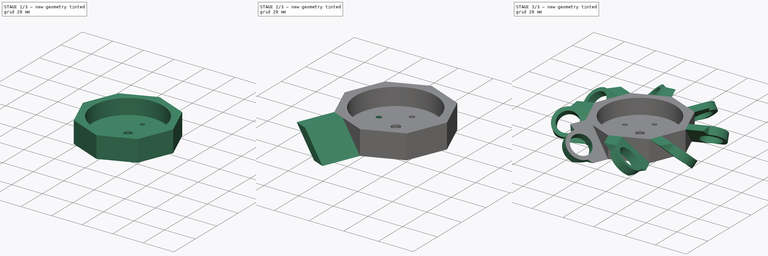
[diagram: build sequence overview — one tinted view per stage of 3, left to right]
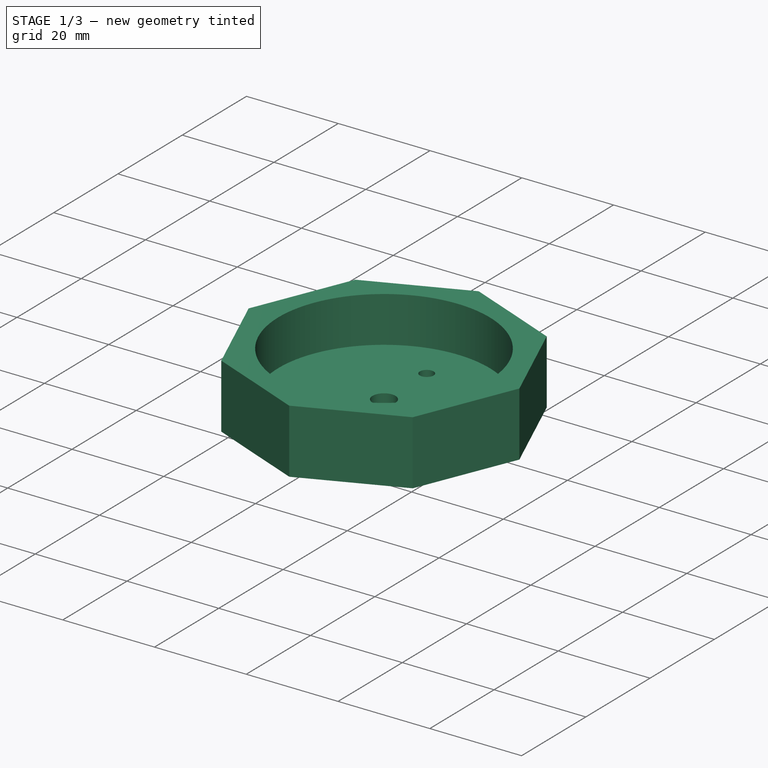
[diagram: stage 1 of 3 — iso view after this stage's code; geometry added in this stage tinted green]
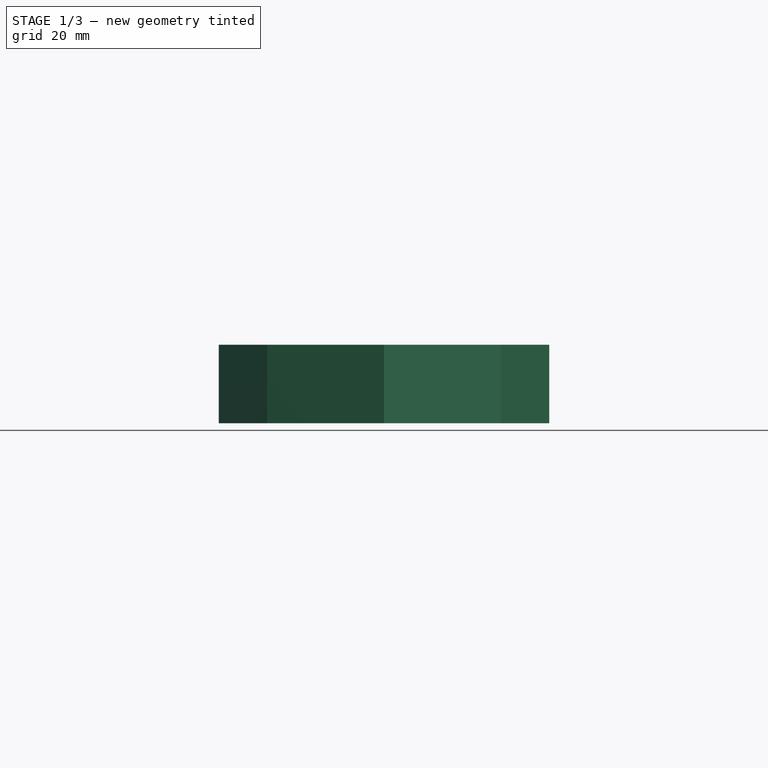
[diagram: stage 1 of 3 — front view after this stage's code; geometry added in this stage tinted green]
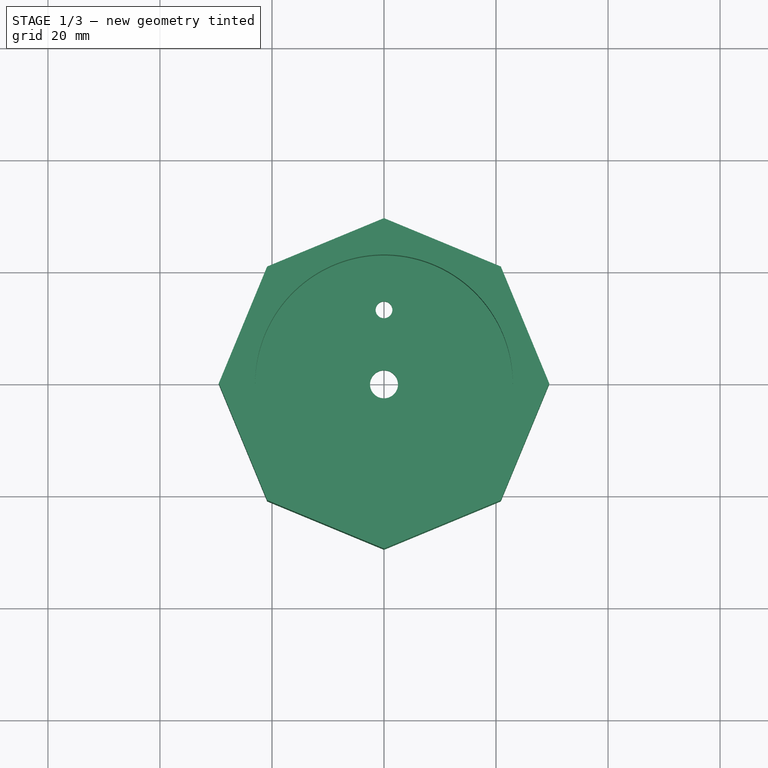
[diagram: stage 1 of 3 — top view after this stage's code; geometry added in this stage tinted green]
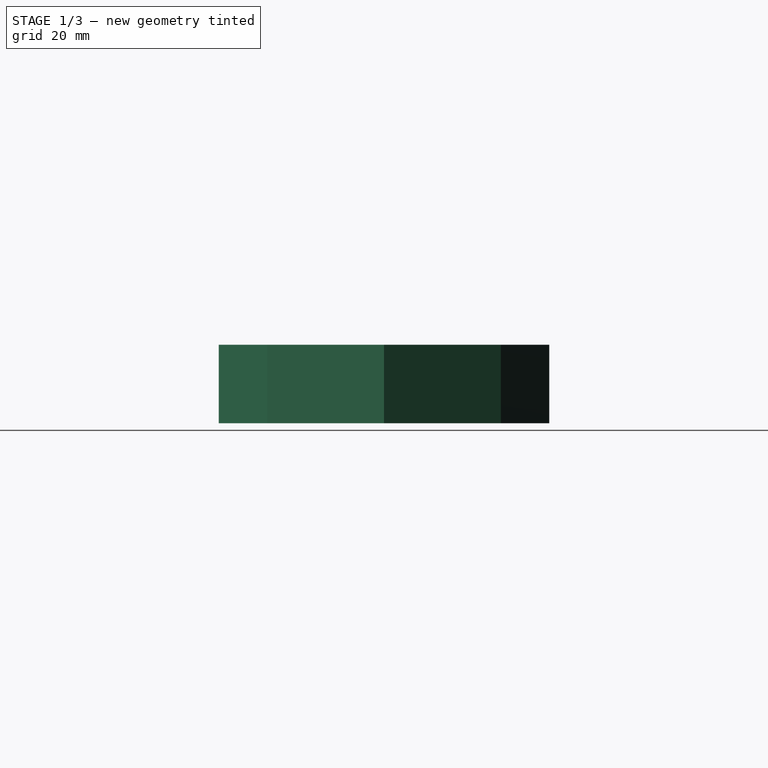
[diagram: stage 1 of 3 — right view after this stage's code; geometry added in this stage tinted green]
FCSTD DOCUMENT  (FreeCAD 0.18.3R)
Label: wheel_left
License: All rights reserved
LicenseURL: http://en.wikipedia.org/wiki/All_rights_reserved
objects: Sketcher::SketchObject×5, PartDesign::Pocket×3, PartDesign::PolarPattern×3, PartDesign::Pad×2, PartDesign::Body×1
note: 19 computed .brp shape members not serialized (recipe doc carries the construction recipe); baked Part::Feature solids carry a one-line shape summary decoded from their .brp

FEATURE [Sketcher::SketchObject] Sketch
  MapMode = 5
  Support = -> [XY_Plane]
  sketch-geometry (9):
    g0: LineSegment StartX=29.5 StartY=0 StartZ=0 EndX=20.8597 EndY=20.8597 EndZ=0
    g1: LineSegment StartX=20.8597 StartY=20.8597 StartZ=0 EndX=3.6e-15 EndY=29.5 EndZ=0
    g2: LineSegment StartX=3.6e-15 StartY=29.5 StartZ=0 EndX=-20.8597 EndY=20.8597 EndZ=0
    g3: LineSegment StartX=-20.8597 StartY=20.8597 StartZ=0 EndX=-29.5 EndY=3.6e-15 EndZ=0
    g4: LineSegment StartX=-29.5 StartY=2.5e-15 StartZ=0 EndX=-20.8597 EndY=-20.8597 EndZ=0
    g5: LineSegment StartX=-20.8597 StartY=-20.8597 StartZ=0 EndX=0 EndY=-29.5 EndZ=0
    g6: LineSegment StartX=-1.8e-15 StartY=-29.5 StartZ=0 EndX=20.8597 EndY=-20.8597 EndZ=0
    g7: LineSegment StartX=20.8597 StartY=-20.8597 StartZ=0 EndX=29.5 EndY=0 EndZ=0
    g8: Circle [constr] CenterX=0 CenterY=0 CenterZ=0 NormalX=0 NormalY=0 NormalZ=1 AngleXU=0 Radius=29.5
  constraints (20):
    c: Coincident(g0,g1)
    c: Coincident(g1,g2)
    c: Coincident(g2,g3)
    c: Coincident(g3,g4)
    c: Coincident(g4,g5)
    c: Coincident(g5,g6)
    c: Coincident(g6,g7)
    c: Coincident(g7,g0)
    c: Equal(g0, g1-g7) x7
    c: PointOnObject(g0,g8)
    c: PointOnObject(g1,g8)
    c: PointOnObject(g2,g8)
    c: PointOnObject(g3,g8)
    c: PointOnObject(g4,g8)
    c: PointOnObject(g5,g8)
    c: PointOnObject(g6,g8)
    c: PointOnObject(g7,g8)
    c: Coincident(g8,g-1)
    c: PointOnObject(g7,g-1)
    c: DistanceX(g3,g0) = 59
FEATURE [PartDesign::Pad] Pad
  Length = 14
  Length2 = 100
  Profile = -> Sketch
  Type = 0
FEATURE [Sketcher::SketchObject] Sketch001
  MapMode = 5
  Placement = pos=(0,0,14) rot=(0,0,1;0rad)
  Support = -> [Pad]
  sketch-geometry (1):
    g0: Circle CenterX=0 CenterY=0 CenterZ=0 NormalX=0 NormalY=0 NormalZ=1 AngleXU=0 Radius=23
  constraints (2):
    c: Coincident(g0,g-1)
    c: Diameter(g0) = 46
FEATURE [PartDesign::Pocket] Pocket
  BaseFeature = -> Pad
  Length = 10
  Length2 = 100
  Profile = -> Sketch001
  Type = 0
FEATURE [Sketcher::SketchObject] Sketch002
  MapMode = 5
  Placement = pos=(0,0,4) rot=(0,0,1;0rad)
  Support = -> [Pocket]
  sketch-geometry (2):
    g0: Circle CenterX=0 CenterY=0 CenterZ=0 NormalX=0 NormalY=0 NormalZ=1 AngleXU=0 Radius=2.5
    g1: Circle CenterX=0 CenterY=13.3 CenterZ=0 NormalX=0 NormalY=0 NormalZ=1 AngleXU=0 Radius=1.5
  constraints (5):
    c: Coincident(g0,g-1)
    c: Diameter(g0) = 5
    c: Diameter(g1) = 3
    c: PointOnObject(g1,g-2)
    c: DistanceY(g0,g1) = 13.3
FEATURE [PartDesign::Pocket] Pocket001
  BaseFeature = -> Pocket
  Length = 5
  Length2 = 100
  Profile = -> Sketch002
  Type = 1
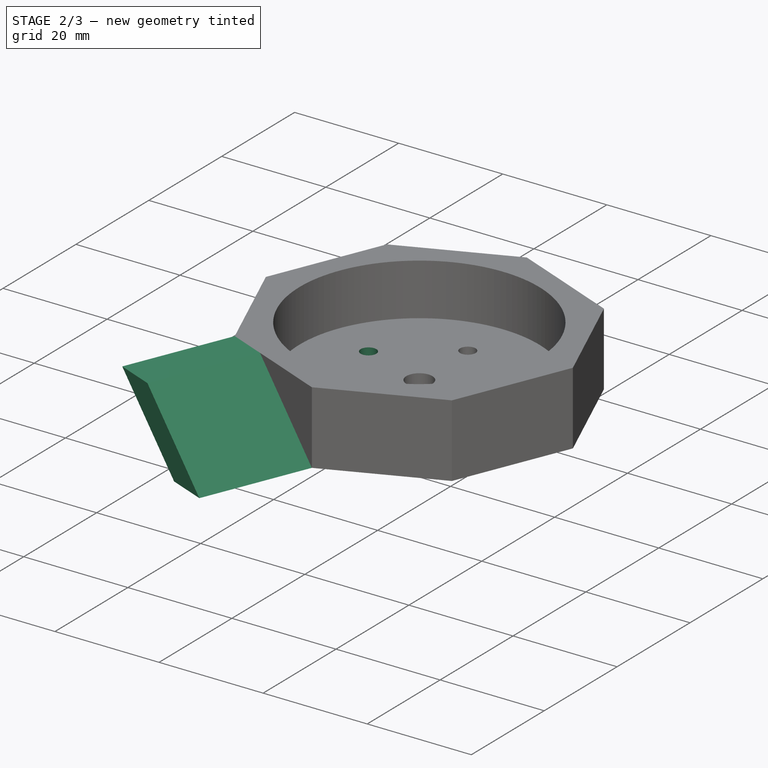
[diagram: stage 2 of 3 — iso view after this stage's code; geometry added in this stage tinted green]
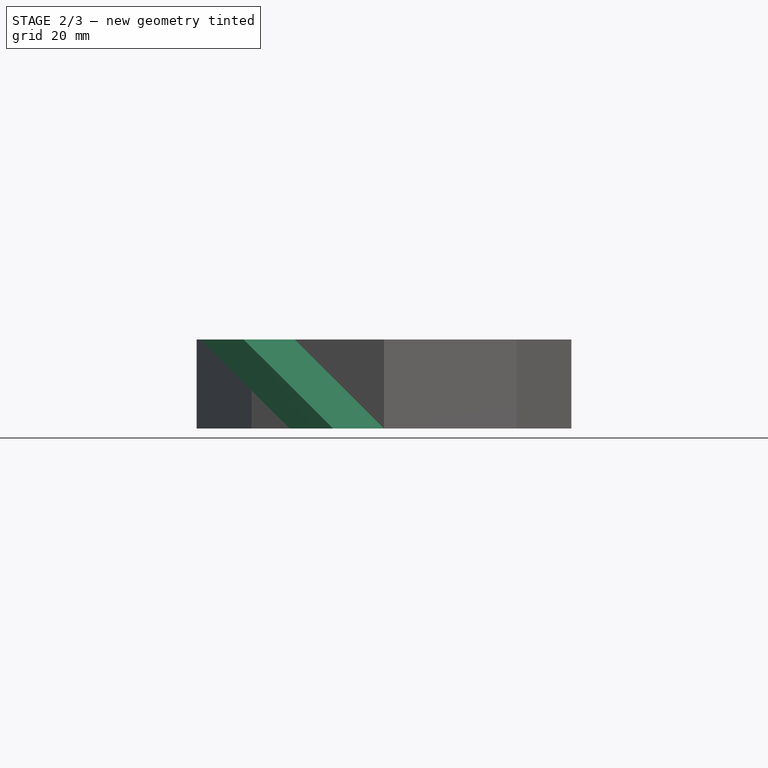
[diagram: stage 2 of 3 — front view after this stage's code; geometry added in this stage tinted green]
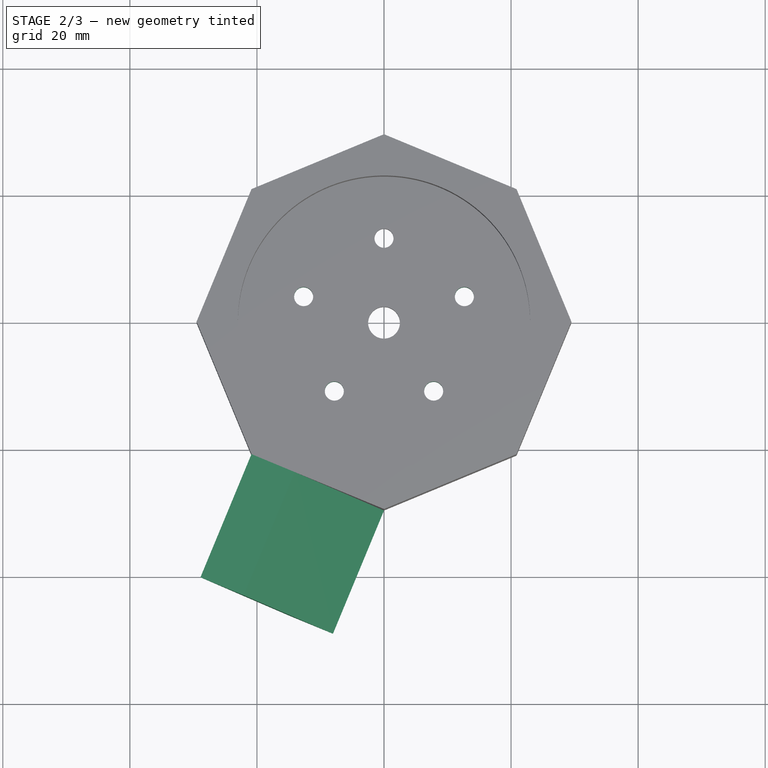
[diagram: stage 2 of 3 — top view after this stage's code; geometry added in this stage tinted green]
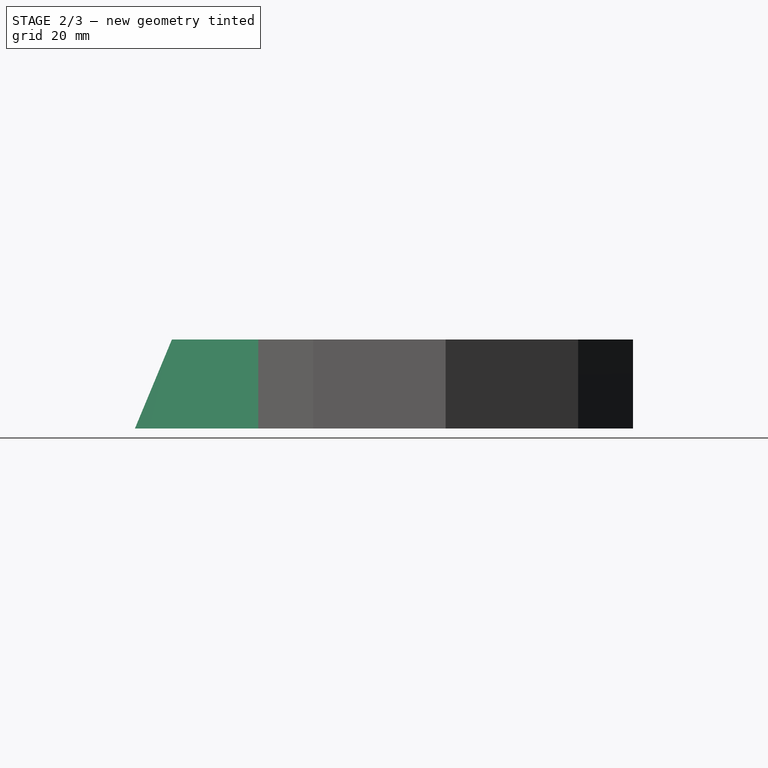
[diagram: stage 2 of 3 — right view after this stage's code; geometry added in this stage tinted green]
FEATURE [PartDesign::PolarPattern] PolarPattern
  Angle = 360
  Axis = -> Sketch002 [N_Axis]
  BaseFeature = -> Pocket001
  Occurrences = 5
  Originals = -> [Pocket001]
FEATURE [Sketcher::SketchObject] Sketch003
  ExternalGeometry = -> [PolarPattern]
  MapMode = 5
  Placement = pos=(-10.4298,-25.1798,0) rot=(0.962637,-0.19148,-0.19148;1.60887rad)
  Support = -> [PolarPattern]
  sketch-geometry (5):
    g0: LineSegment StartX=-11.2892 StartY=14 StartZ=0 EndX=3.90924 EndY=0 EndZ=0
    g1: LineSegment StartX=11.2892 StartY=-4e-16 StartZ=0 EndX=-3.90924 EndY=14 EndZ=0
    g2: LineSegment StartX=-3.90924 StartY=14 StartZ=0 EndX=-11.2892 EndY=14 EndZ=0
    g3: LineSegment StartX=3.90924 StartY=0 StartZ=0 EndX=11.2892 EndY=-4e-16 EndZ=0
    g4: LineSegment [constr] StartX=-3.90924 StartY=14 StartZ=0 EndX=-7.29681 EndY=10.3225 EndZ=0
  constraints (13):
    c: Coincident(g0,g-5)
    c: PointOnObject(g0,g-1)
    c: Coincident(g1,g-4)
    c: Parallel(g1,g0)
    c: Coincident(g2,g1)
    c: Coincident(g2,g0)
    c: Coincident(g3,g0)
    c: Coincident(g3,g1)
    c: Equal(g2,g3)
    c: Coincident(g4,g1)
    c: Distance(g4) = 5
    c: Perpendicular(g1,g4)
    c: PointOnObject(g4,g0)
FEATURE [PartDesign::Pad] Pad001
  BaseFeature = -> PolarPattern
  Length = 21
  Length2 = 100
  Profile = -> Sketch003
  Type = 0
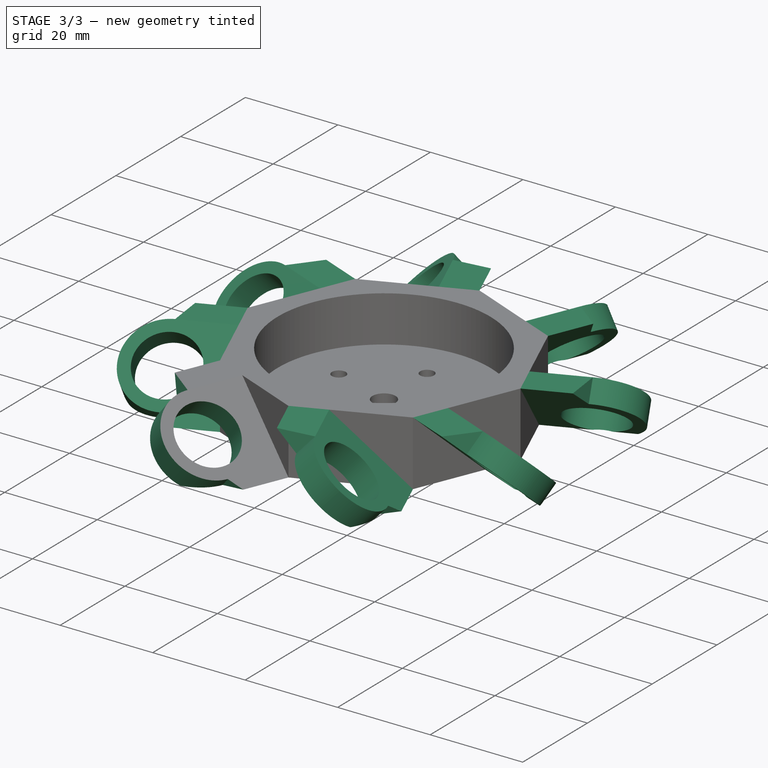
[diagram: stage 3 of 3 — iso view after this stage's code; geometry added in this stage tinted green]
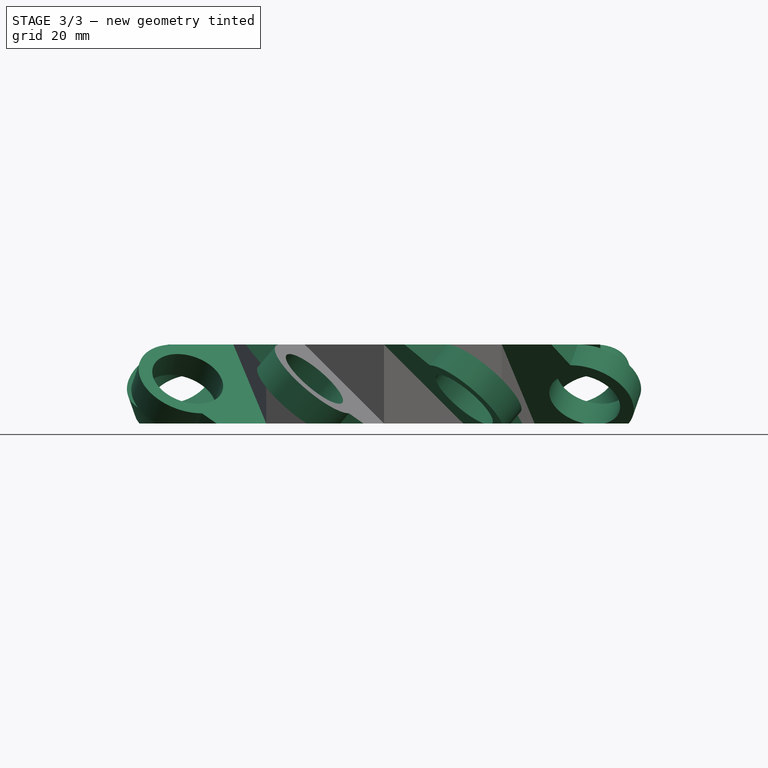
[diagram: stage 3 of 3 — front view after this stage's code; geometry added in this stage tinted green]
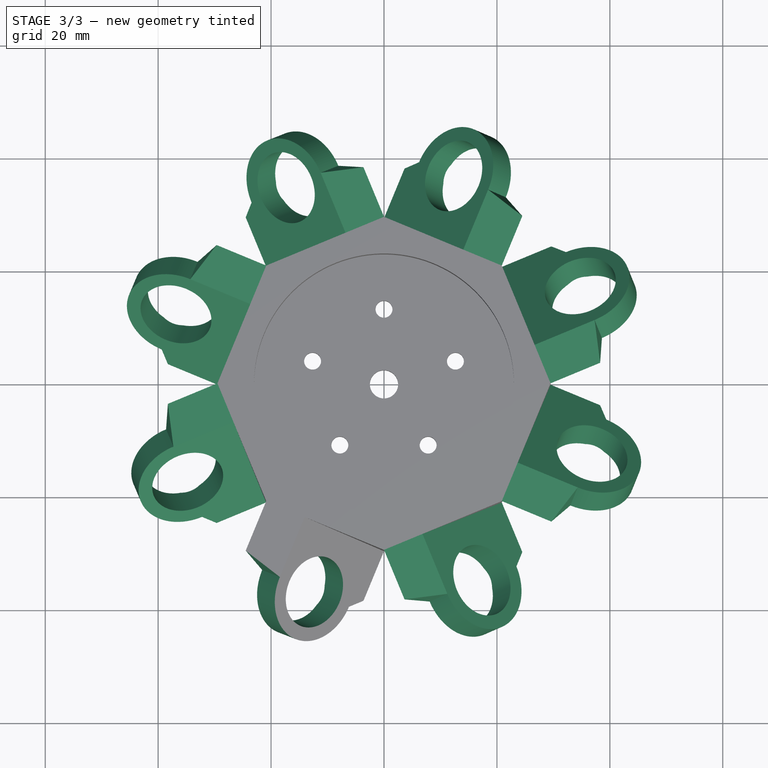
[diagram: stage 3 of 3 — top view after this stage's code; geometry added in this stage tinted green]
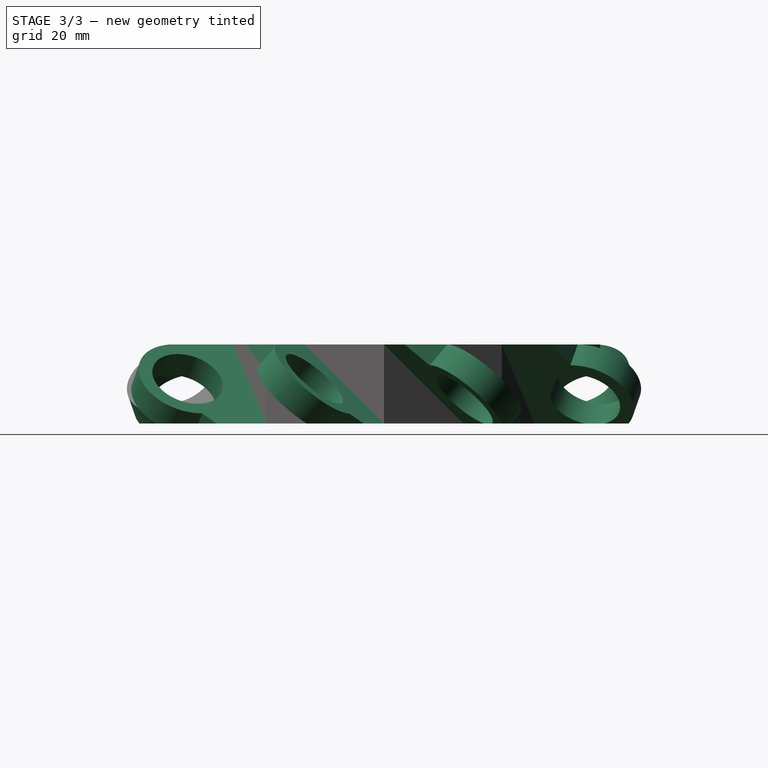
[diagram: stage 3 of 3 — right view after this stage's code; geometry added in this stage tinted green]
FEATURE [PartDesign::PolarPattern] PolarPattern001
  Angle = 360
  Axis = -> Z_Axis
  BaseFeature = -> Pad001
  Occurrences = 8
  Originals = -> [Pad001]
FEATURE [Sketcher::SketchObject] Sketch004
  ExternalGeometry = -> [PolarPattern001]
  MapMode = 5
  Placement = pos=(4.78756,-1.98307,5.6256) rot=(0.432395,0.88877,0.152064;0.753573rad)
  Support = -> [PolarPattern001]
  sketch-geometry (13):
    g0: Circle CenterX=-21.945 CenterY=-32.1188 CenterZ=0 NormalX=0 NormalY=0 NormalZ=1 AngleXU=0 Radius=6.5
    g1: LineSegment [constr] StartX=-21.945 StartY=-32.1188 StartZ=0 EndX=-14.103 EndY=-36.5351 EndZ=0
    g2: LineSegment [constr] StartX=-14.103 StartY=-36.5351 StartZ=0 EndX=-13.1216 EndY=-34.7925 EndZ=0
    g3: LineSegment [constr] StartX=-13.1216 StartY=-34.7925 StartZ=0 EndX=-10.8006 EndY=-36.0996 EndZ=0
    g4: LineSegment StartX=-14.103 StartY=-36.5351 StartZ=0 EndX=-10.8006 EndY=-36.0996 EndZ=0
    g5: LineSegment StartX=-10.8006 StartY=-36.0996 StartZ=0 EndX=-16.4436 EndY=-46.1199 EndZ=0
    g6: LineSegment StartX=-16.4436 StartY=-46.1199 StartZ=0 EndX=-39.1781 EndY=-33.3166 EndZ=0
    g7: LineSegment [constr] StartX=-21.945 StartY=-32.1188 StartZ=0 EndX=-29.7869 EndY=-27.7025 EndZ=0
    g8: LineSegment [constr] StartX=-29.7869 StartY=-27.7025 StartZ=0 EndX=-28.8055 EndY=-25.9599 EndZ=0
    g9: LineSegment [constr] StartX=-28.8055 StartY=-25.9599 StartZ=0 EndX=-33.5351 EndY=-23.2963 EndZ=0
    g10: LineSegment StartX=-29.7869 StartY=-27.7025 StartZ=0 EndX=-33.5351 EndY=-23.2963 EndZ=0
    g11: LineSegment StartX=-33.5351 StartY=-23.2963 StartZ=0 EndX=-39.1781 EndY=-33.3166 EndZ=0
    g12: ArcOfCircle CenterX=-21.945 CenterY=-32.1188 CenterZ=0 NormalX=0 NormalY=0 NormalZ=1 AngleXU=0 Radius=9 StartAngle=2.6287 EndAngle=5.77029
  constraints (33):
    c: Diameter(g0) = 13
    c: Distance(g0,g-3) = 11.5
    c: Coincident(g1,g0)
    c: Parallel(g1,g-5)
    c: Distance(g1) = 9
    c: Coincident(g2,g1)
    c: Perpendicular(g2,g1)
    c: Distance(g2) = 2
    c: Coincident(g3,g2)
    c: Perpendicular(g3,g2)
    c: PointOnObject(g3,g-4)
    c: Coincident(g4,g1)
    c: Coincident(g4,g3)
    c: Coincident(g5,g4)
    c: Coincident(g5,g-5)
    c: Coincident(g6,g5)
    c: Coincident(g6,g-6)
    c: Coincident(g7,g0)
    c: Parallel(g7,g1)
    c: Coincident(g8,g7)
    c: Distance(g8) = 2
    c: Perpendicular(g7,g8)
    c: Coincident(g9,g8)
    c: Perpendicular(g9,g8)
    c: PointOnObject(g9,g-6)
    c: Coincident(g10,g7)
    c: Coincident(g10,g9)
    c: Coincident(g11,g10)
    c: Coincident(g11,g6)
    c: Coincident(g12,g0)
    c: Coincident(g12,g10)
    c: Coincident(g12,g4)
    c: PointOnObject(g10,g-7)
FEATURE [PartDesign::Pocket] Pocket002
  BaseFeature = -> PolarPattern001
  Length = 5
  Length2 = 100
  Profile = -> Sketch004
  Type = 0
FEATURE [PartDesign::PolarPattern] PolarPattern002
  Angle = 360
  Axis = -> Z_Axis
  BaseFeature = -> Pocket002
  Occurrences = 8
  Originals = -> [Pocket002]
FEATURE [PartDesign::Body] Body
  Group = -> [Sketch,Pad,Sketch001,Pocket,Sketch002,Pocket001,PolarPattern,Pad001,PolarPattern001,Sketch004,Pocket002,PolarPattern002]
  Origin = -> Origin
  Tip = -> PolarPattern002
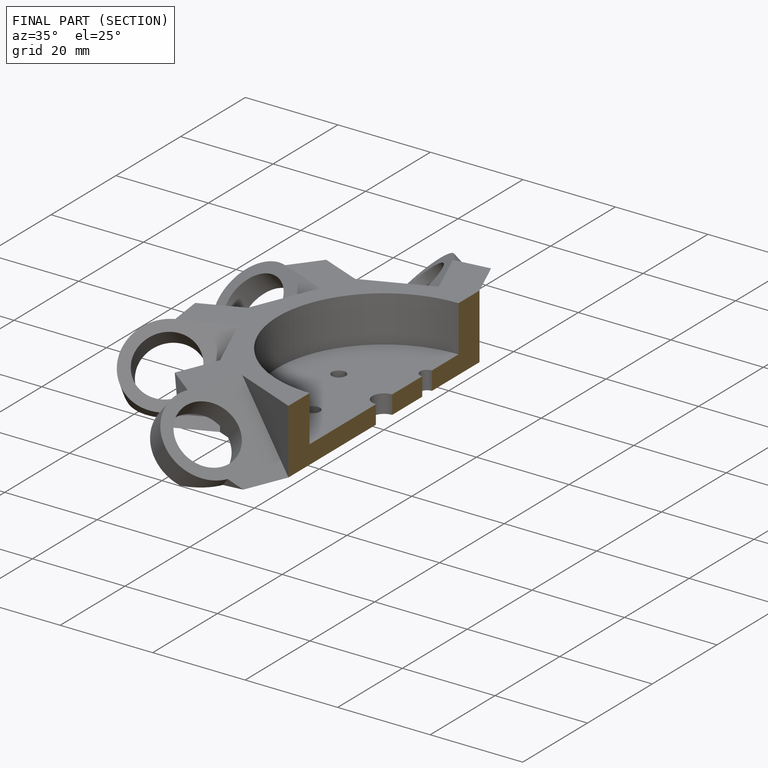
[diagram: finished part — half-section view (interior)]
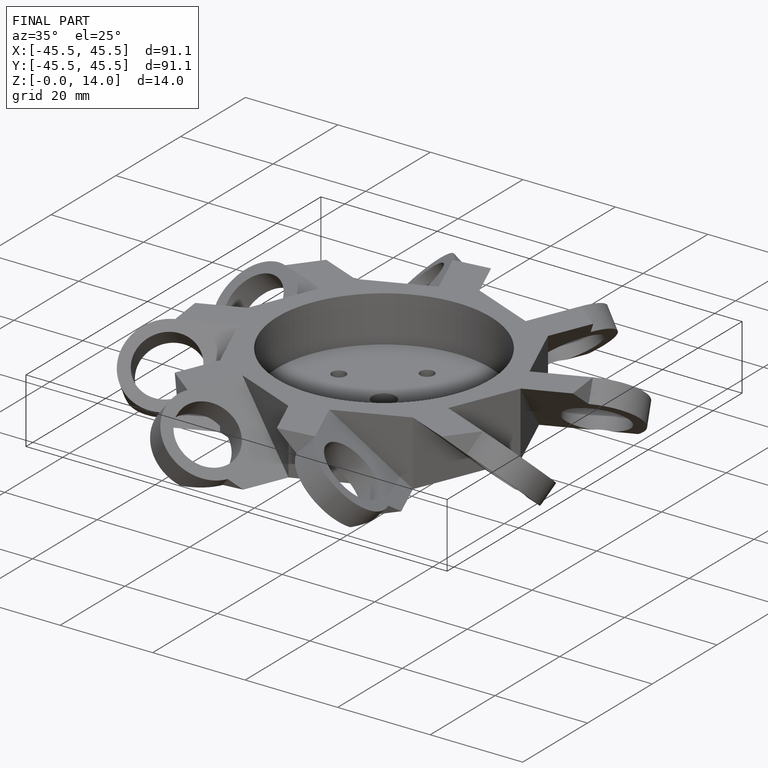
[diagram: finished part — iso view with bounding-box wireframe]
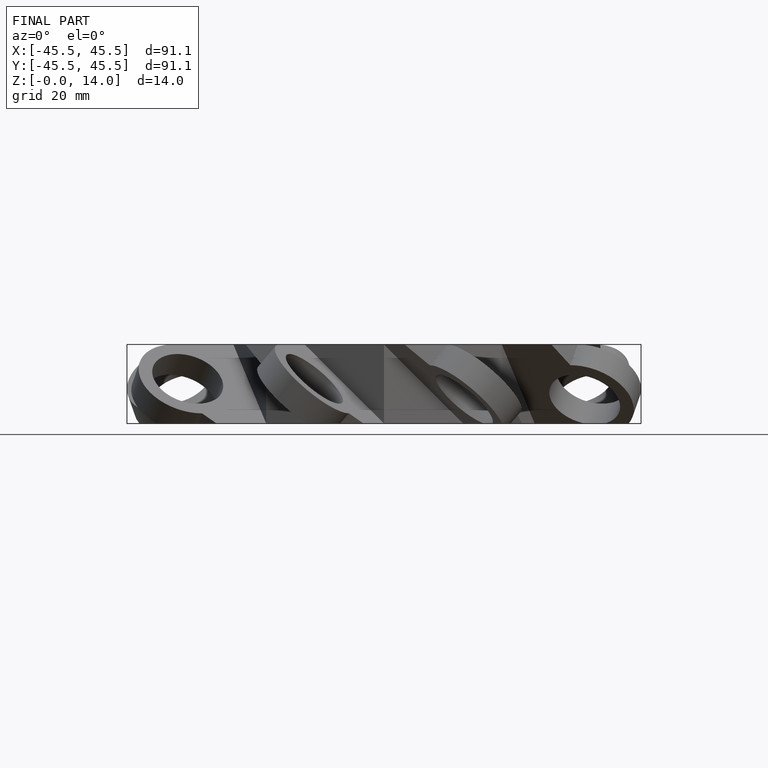
[diagram: finished part — front view with bounding-box wireframe]
